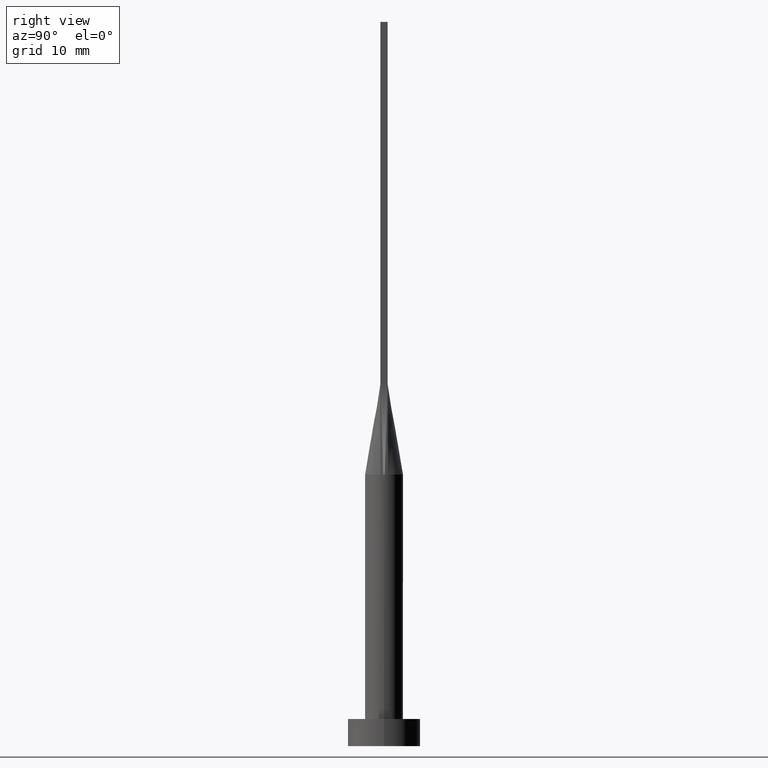
[diagram: clean part render]
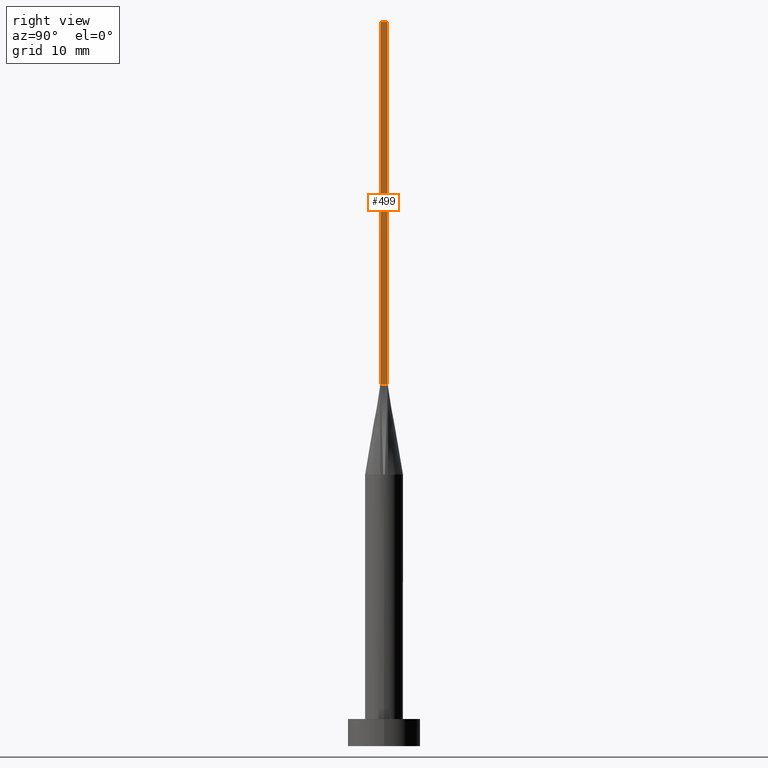
[diagram: same view with one face highlighted and labeled with its STEP entity id]
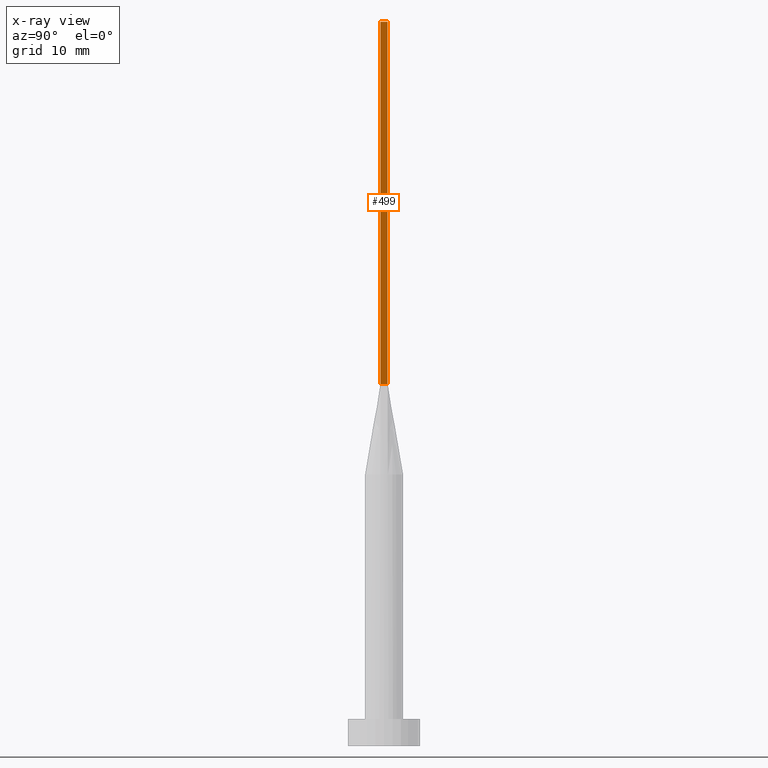
[diagram: x-ray of the same camera — body ghosted, the highlighted face saturated]
A machine part, right view. The second image highlights one B-rep face of the part: STEP entity #499.
The next image is the same camera in x-ray: the body ghosted, the highlighted face saturated — about 0% of this face is hidden behind the body in this view.
In plain terms, the highlighted planar face has unit normal (-1, 0, 0).
Its self-contained STEP definition (entity closure, byte-faithful):
#7 = DIRECTION ( 'NONE',  ( -1.000000000000000000, 8.131516293641283255E-16, 0.000000000000000000 ) ) ;
#23 = AXIS2_PLACEMENT_3D ( 'NONE', #327, #7, #152 ) ;
#29 = CARTESIAN_POINT ( 'NONE',  ( 1.899999999999999689, 0.4000000000000002442, 80.00000000000000000 ) ) ;
#42 = DIRECTION ( 'NONE',  ( -0.000000000000000000, -0.000000000000000000, -1.000000000000000000 ) ) ;
#54 = FACE_OUTER_BOUND ( 'NONE', #544, .T. ) ;
#58 = CARTESIAN_POINT ( 'NONE',  ( 1.899999999999999689, 0.4000000000000002442, 40.00000000000000000 ) ) ;
#76 = VERTEX_POINT ( 'NONE', #248 ) ;
#111 = VECTOR ( 'NONE', #552, 1000.000000000000000 ) ;
#119 = DIRECTION ( 'NONE',  ( -0.000000000000000000, -0.000000000000000000, -1.000000000000000000 ) ) ;
#125 = ORIENTED_EDGE ( 'NONE', *, *, #469, .F. ) ;
#137 = EDGE_CURVE ( 'NONE', #520, #159, #559, .T. ) ;
#145 = CARTESIAN_POINT ( 'NONE',  ( 1.899999999999999689, 0.4000000000000002442, 80.00000000000000000 ) ) ;
#152 = DIRECTION ( 'NONE',  ( -8.131516293641283255E-16, -1.000000000000000000, 0.000000000000000000 ) ) ;
#156 = VECTOR ( 'NONE', #119, 1000.000000000000000 ) ;
#159 = VERTEX_POINT ( 'NONE', #260 ) ;
#183 = EDGE_CURVE ( 'NONE', #76, #206, #313, .T. ) ;
#206 = VERTEX_POINT ( 'NONE', #453 ) ;
#219 = ORIENTED_EDGE ( 'NONE', *, *, #137, .F. ) ;
#241 = DIRECTION ( 'NONE',  ( 8.131516293641283255E-16, 1.000000000000000000, 0.000000000000000000 ) ) ;
#246 = VECTOR ( 'NONE', #42, 1000.000000000000000 ) ;
#248 = CARTESIAN_POINT ( 'NONE',  ( 1.899999999999999023, -0.3999999999999998002, 80.00000000000000000 ) ) ;
#255 = ORIENTED_EDGE ( 'NONE', *, *, #183, .T. ) ;
#260 = CARTESIAN_POINT ( 'NONE',  ( 1.899999999999999689, 0.4000000000000002442, 40.00000000000000000 ) ) ;
#287 = LINE ( 'NONE', #506, #321 ) ;
#313 = LINE ( 'NONE', #398, #246 ) ;
#321 = VECTOR ( 'NONE', #241, 1000.000000000000000 ) ;
#327 = CARTESIAN_POINT ( 'NONE',  ( 1.899999999999999023, -0.3999999999999998002, 80.00000000000000000 ) ) ;
#330 = LINE ( 'NONE', #58, #111 ) ;
#398 = CARTESIAN_POINT ( 'NONE',  ( 1.899999999999999023, -0.3999999999999998002, 80.00000000000000000 ) ) ;
#453 = CARTESIAN_POINT ( 'NONE',  ( 1.899999999999999023, -0.3999999999999998002, 40.00000000000000000 ) ) ;
#460 = EDGE_CURVE ( 'NONE', #206, #159, #330, .T. ) ;
#469 = EDGE_CURVE ( 'NONE', #76, #520, #287, .T. ) ;
#479 = ORIENTED_EDGE ( 'NONE', *, *, #460, .T. ) ;
#499 = ADVANCED_FACE ( 'NONE', ( #54 ), #546, .F. ) ;
#506 = CARTESIAN_POINT ( 'NONE',  ( 1.899999999999999023, -0.3999999999999998002, 80.00000000000000000 ) ) ;
#520 = VERTEX_POINT ( 'NONE', #145 ) ;
#544 = EDGE_LOOP ( 'NONE', ( #479, #219, #125, #255 ) ) ;
#546 = PLANE ( 'NONE',  #23 ) ;
#552 = DIRECTION ( 'NONE',  ( -2.710505431213761085E-16, 1.000000000000000000, -0.000000000000000000 ) ) ;
#559 = LINE ( 'NONE', #29, #156 ) ;